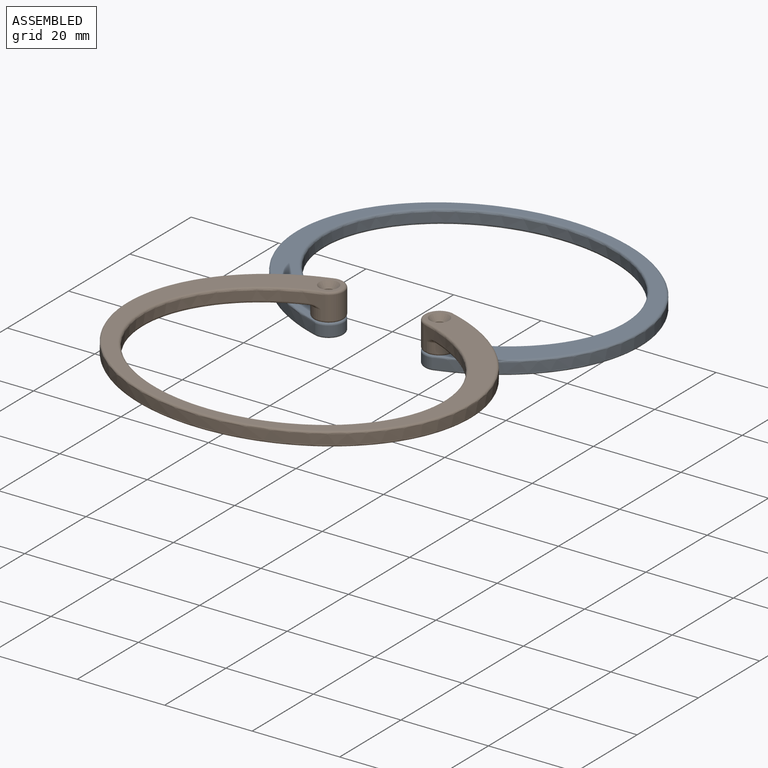
[diagram: assembled view]
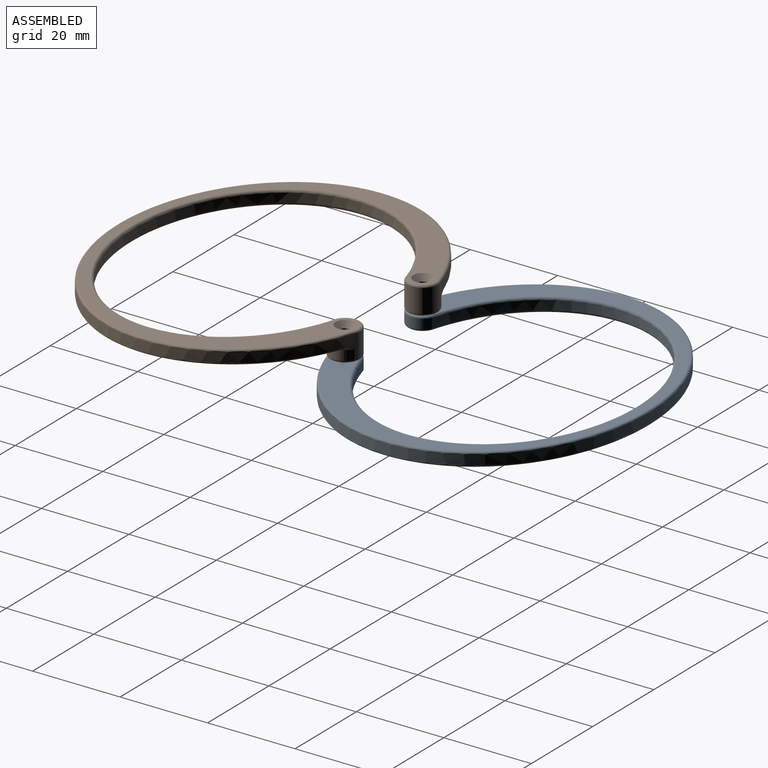
[diagram: assembled view, second angle]
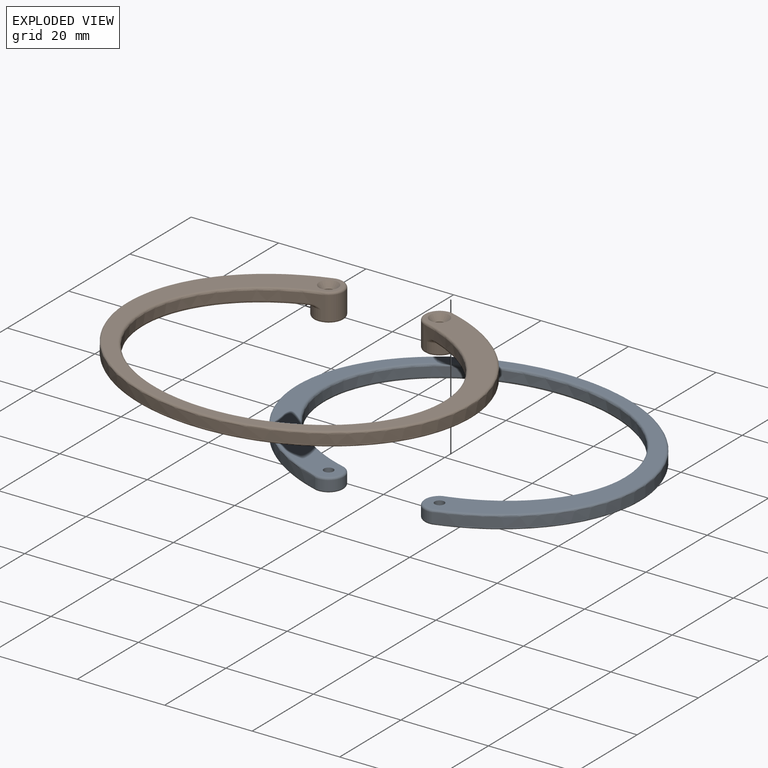
[diagram: exploded view]
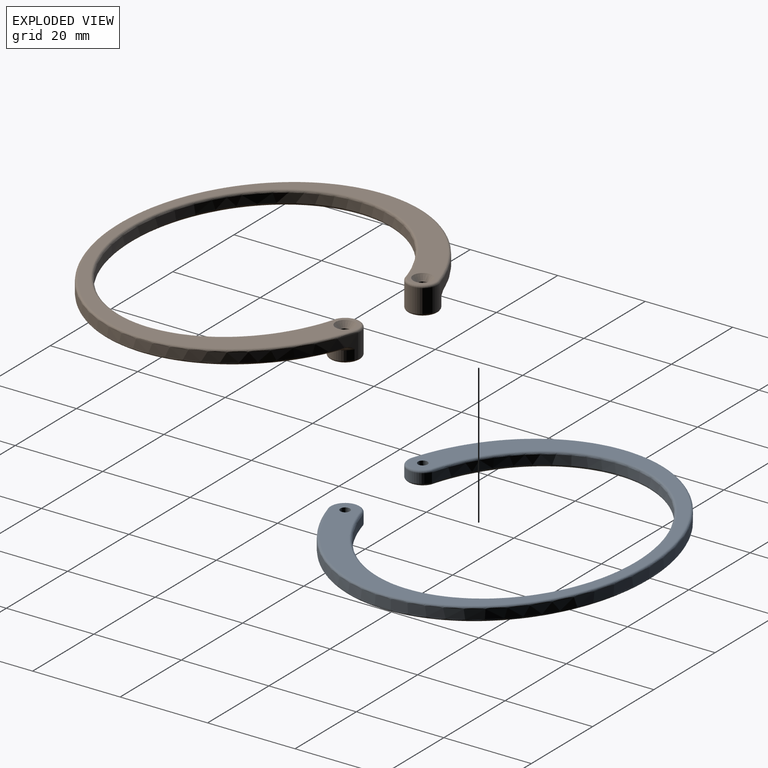
[diagram: exploded view, second angle]
ASSEMBLY  parts=2 mates=2
PART A: 28 faces, bbox 78.8x65.2x3.2 mm
  f0: extruded ~68.58x54.33mm, area 374mm2, adj f13,f22,f23,f27
  f1: cylinder r=3.48mm len=6.62mm, axis (0,0,-1), area 21.5mm2, adj f8,f12,f13,f14
  f2: extruded ~78.74x64.1mm, area 433.6mm2, adj f8,f11,f15,f16
  f3: cylinder r=3.48mm len=6.62mm, axis (0,0,-1), area 21.5mm2, adj f16,f21,f24,f27
  f4: plane 77.74x63.14mm, normal (0,0,1), area 727.5mm2, adj f6,f7,f11,f12,f21,f22
  f5: plane 77.74x63.14mm, normal (0,0,-1), area 724.8mm2, adj f6,f7,f14,f15,f23,f24
  f6: cylinder r=1.09mm len=3.18mm, axis (0,0,1), area 21.8mm2, adj f4,f5
  f7: cylinder r=1.09mm len=3.18mm, axis (0,0,1), area 21.8mm2, adj f4,f5
  f8: cylinder r=0.51mm len=2.16mm, axis (0,0,-1), area 0.1mm2, adj f1,f2,f9,f10
  f9: sphere r=0.51mm, area 0mm2, adj f8,f11,f12
  f10: sphere r=0.51mm, area 0mm2, adj f8,f14,f15
  f11: bspline ~78.76x65.21mm, area 159.4mm2, adj f2,f4,f9,f17
  f12: torus R=2.97mm, axis (0,0,1), area 7.5mm2, adj f1,f4,f9,f18
  f13: cylinder r=0.51mm len=2.16mm, axis (0,0,-1), area 0.2mm2, adj f0,f1,f18,f19
  f14: torus R=2.97mm, axis (0,0,1), area 7.5mm2, adj f1,f5,f10,f19
  f15: bspline ~78.76x65.21mm, area 159.4mm2, adj f2,f5,f10,f20
  f16: cylinder r=0.51mm len=2.16mm, axis (0,0,-1), area 0.1mm2, adj f2,f3,f17,f20
  f17: sphere r=0.51mm, area 0mm2, adj f11,f16,f21
  f18: sphere r=0.51mm, area 0mm2, adj f12,f13,f22
  f19: sphere r=0.51mm, area 0mm2, adj f13,f14,f23
  f20: sphere r=0.51mm, area 0mm2, adj f15,f16,f24
  f21: torus R=2.97mm, axis (0,0,1), area 7.5mm2, adj f3,f4,f17,f25
  f22: bspline ~69.61x56.05mm, area 139mm2, adj f0,f4,f18,f25
  f23: bspline ~69.61x56.05mm, area 139mm2, adj f0,f5,f19,f26
  f24: torus R=2.97mm, axis (0,0,1), area 7.5mm2, adj f3,f5,f20,f26
  f25: sphere r=0.51mm, area 0mm2, adj f21,f22,f27
  f26: sphere r=0.51mm, area 0mm2, adj f23,f24,f27
  f27: cylinder r=0.51mm len=2.16mm, axis (0,0,-1), area 0.2mm2, adj f0,f3,f25,f26
PART B: 54 faces, bbox 78.8x65.2x6.4 mm
  f0: cylinder r=3.48mm len=6.62mm, axis (0,0,-1), area 53.2mm2, adj f10,f14,f15,f16
  f1: extruded ~68.58x54.33mm, area 381mm2, adj f10,f13,f17,f22,f27,f31,f32,f37
  f2: cylinder r=3.48mm len=6.62mm, axis (0,0,-1), area 53.1mm2, adj f22,f23,f33,f34
  f3: extruded ~78.74x64.1mm, area 440.2mm2, adj f15,f24,f25,f34,f35,f41,f44,f45
  f4: plane 77.74x63.14mm, normal (0,0,1), area 705mm2, adj f13,f14,f23,f24,f51,f53
  f5: plane 77.74x62.09mm, normal (0,0,-1), area 664.8mm2, adj f36,f37,f45,f46
  f6: cylinder r=3.48mm len=6.64mm, axis (0,0,1), area 21.3mm2, adj f26,f27,f35,f36
  f7: plane 5.95x5.95mm, normal (0,0,-1), area 24mm2, adj f16,f17,f25,f26,f50
  f8: cylinder r=3.48mm len=6.61mm, axis (0,0,1), area 21.3mm2, adj f38,f43,f46,f49
  f9: plane 5.93x5.91mm, normal (0,0,-1), area 23.7mm2, adj f32,f33,f43,f44,f52
  f10: cylinder r=0.51mm len=5.33mm, axis (0,0,-1), area 0.5mm2, adj f0,f1,f11,f12
  f11: sphere r=0.51mm, area 0mm2, adj f10,f13,f14
  f12: sphere r=0.51mm, area 0mm2, adj f10,f16,f17
  f13: bspline ~69.61x56.05mm, area 139mm2, adj f1,f4,f11,f18
  f14: torus R=2.97mm, axis (0,0,1), area 7.5mm2, adj f0,f4,f11,f19
  f15: cylinder r=0.51mm len=5.33mm, axis (0,0,-1), area 0.3mm2, adj f0,f3,f19,f20
  f16: torus R=2.97mm, axis (0,0,1), area 7.5mm2, adj f0,f7,f12,f20
  f17: bspline ~7.52x2.66mm, area 0.8mm2, adj f1,f7,f12,f21
  f18: sphere r=0.51mm, area 0mm2, adj f13,f22,f23
  f19: sphere r=0.51mm, area 0mm2, adj f14,f15,f24
  f20: sphere r=0.51mm, area 0mm2, adj f15,f16,f25
  f21: sphere r=0.51mm, area 0mm2, adj f17,f26,f27
  f22: cylinder r=0.51mm len=5.33mm, axis (0,0,-1), area 0.5mm2, adj f1,f2,f18,f28
  f23: torus R=2.97mm, axis (0,0,1), area 7.5mm2, adj f2,f4,f18,f29
  f24: bspline ~78.76x65.21mm, area 159.4mm2, adj f3,f4,f19,f29
  f25: bspline ~9.01x3.25mm, area 0.6mm2, adj f3,f7,f20,f30
  f26: torus R=2.97mm, axis (0,0,1), area 7.5mm2, adj f6,f7,f21,f30
  f27: cylinder r=0.51mm len=2.16mm, axis (0,0,-1), area 0.2mm2, adj f1,f6,f21,f31
  f28: sphere r=0.51mm, area 0mm2, adj f22,f32,f33
  f29: sphere r=0.51mm, area 0mm2, adj f23,f24,f34
  f30: sphere r=0.51mm, area 0mm2, adj f25,f26,f35
  f31: bspline ~2.44x1.04mm, area 1mm2, adj f1,f27,f36,f37
  f32: bspline ~6.66x2.21mm, area 0.7mm2, adj f1,f9,f28,f39
  f33: torus R=2.97mm, axis (0,0,1), area 7.5mm2, adj f2,f9,f28,f40
  f34: cylinder r=0.51mm len=5.33mm, axis (0,0,-1), area 0.3mm2, adj f2,f3,f29,f40
  f35: cylinder r=0.51mm len=2.16mm, axis (0,0,-1), area 0.1mm2, adj f3,f6,f30,f41
  f36: torus R=3.99mm, axis (0,0,1), area 6.5mm2, adj f5,f6,f31,f41
  f37: bspline ~69.61x55.39mm, area 134.2mm2, adj f1,f5,f31,f42
  f38: cylinder r=0.51mm len=2.16mm, axis (0,0,-1), area 0.2mm2, adj f1,f8,f39,f42
  f39: sphere r=0.51mm, area 0mm2, adj f32,f38,f43
  f40: sphere r=0.51mm, area 0mm2, adj f33,f34,f44
  f41: bspline ~2.4x1.34mm, area 1.1mm2, adj f3,f35,f36,f45
  f42: bspline ~2.47x1.05mm, area 1mm2, adj f1,f37,f38,f46
  f43: torus R=2.97mm, axis (0,0,1), area 7.4mm2, adj f8,f9,f39,f47
  f44: bspline ~9.01x3.24mm, area 0.7mm2, adj f3,f9,f40,f47
  f45: bspline ~78.76x64.3mm, area 154.3mm2, adj f3,f5,f41,f48
  f46: torus R=3.99mm, axis (0,0,1), area 6.5mm2, adj f5,f8,f42,f48
  f47: sphere r=0.51mm, area 0mm2, adj f43,f44,f49
  f48: bspline ~2.58x1.44mm, area 1.1mm2, adj f3,f45,f46,f49
  f49: cylinder r=0.51mm len=2.16mm, axis (0,0,-1), area 0.2mm2, adj f3,f8,f47,f48
  f50: cylinder r=1.09mm len=5.09mm, axis (0,0,1), area 35mm2, adj f7,f51
  f51: cone r=1.09mm half-angle=41deg, axis (0,0,1), area 17.1mm2, adj f4,f50
  f52: cylinder r=1.09mm len=5.09mm, axis (0,0,1), area 35mm2, adj f9,f53
  f53: cone r=1.09mm half-angle=41deg, axis (0,0,1), area 17.1mm2, adj f4,f52
PLACE A t=(-55.34,3.12,-11.45)mm
PLACE B rot(axis=(0,0,1),180deg) t=(-55.36,-56,-5.1)mm
MATE fastened B.f0 <-> A.f1  axis (0,0,-1) through (-42.67,-26.44,-8.27)mm
MATE revolute B.f2 <-> A.f3  axis (0,0,-1) through (-68.03,-26.44,-8.27)mm
